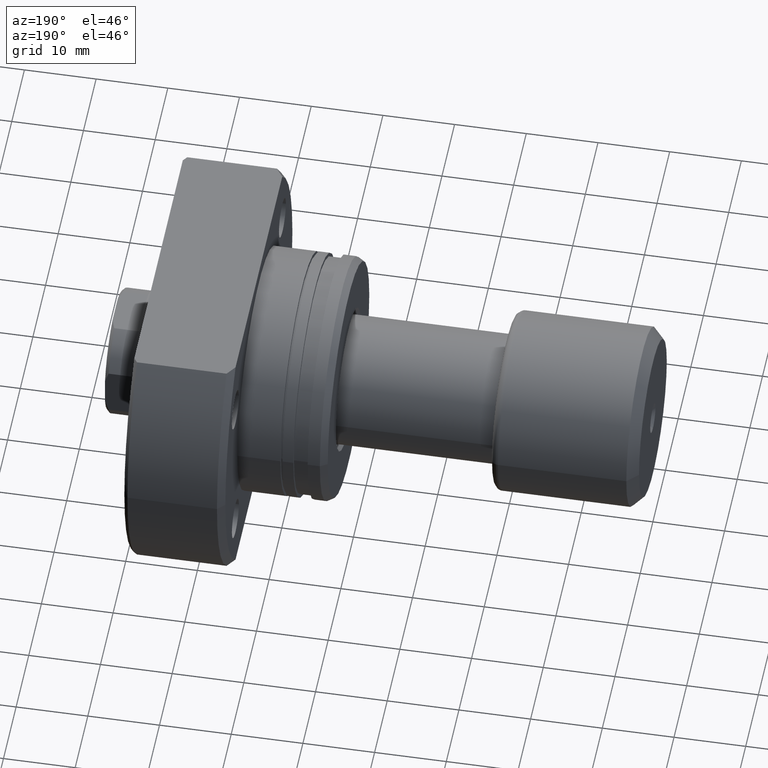
[diagram: clean part render]
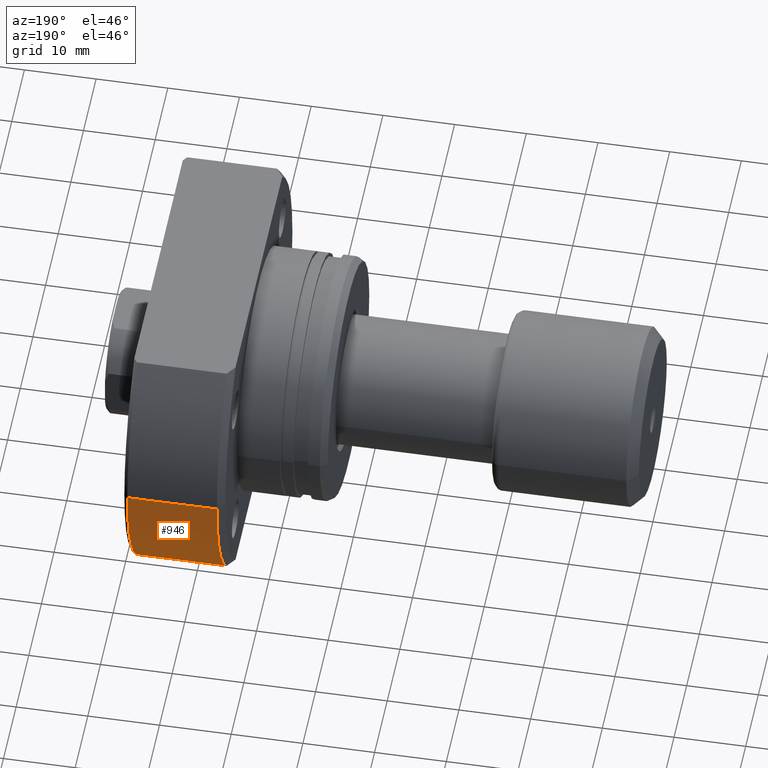
[diagram: same view with one face highlighted and labeled with its STEP entity id]
A machine part, auxiliary view. The second image highlights one B-rep face of the part: STEP entity #946.
In plain terms, the highlighted cylindrical surface (partial cylindrical patch) has radius 27.5 mm, axis along (1, 0, 0).
Its self-contained STEP definition (entity closure, byte-faithful):
#8 = CARTESIAN_POINT ( 'NONE',  ( -2.151057110211240797E-13, 19.88089535207168268, -18.99999999999999645 ) ) ;
#63 = CARTESIAN_POINT ( 'NONE',  ( 13.49999999999999112, 27.49999999999991473, 0.000000000000000000 ) ) ;
#76 = CIRCLE ( 'NONE', #750, 27.49999999999991473 ) ;
#83 = VERTEX_POINT ( 'NONE', #1871 ) ;
#144 = EDGE_CURVE ( 'NONE', #2897, #1978, #1308, .T. ) ;
#204 = EDGE_LOOP ( 'NONE', ( #678, #2541, #2117, #2608 ) ) ;
#229 = CARTESIAN_POINT ( 'NONE',  ( 26.00000000000008882, 27.49999999999991473, 0.000000000000000000 ) ) ;
#509 = CARTESIAN_POINT ( 'NONE',  ( 13.49999999999998757, 19.88089535207129543, -18.99999999999999645 ) ) ;
#678 = ORIENTED_EDGE ( 'NONE', *, *, #1513, .T. ) ;
#750 = AXIS2_PLACEMENT_3D ( 'NONE', #1280, #2789, #2250 ) ;
#788 = EDGE_CURVE ( 'NONE', #83, #1978, #2158, .T. ) ;
#946 = ADVANCED_FACE ( 'NONE', ( #3120 ), #2620, .T. ) ;
#1060 = AXIS2_PLACEMENT_3D ( 'NONE', #2059, #1812, #3045 ) ;
#1156 = DIRECTION ( 'NONE',  ( 1.000000000000000000, 9.242617352055502386E-18, -0.000000000000000000 ) ) ;
#1268 = AXIS2_PLACEMENT_3D ( 'NONE', #2691, #1156, #1708 ) ;
#1280 = CARTESIAN_POINT ( 'NONE',  ( 13.49999999999999112, 1.247753342527491952E-16, 0.000000000000000000 ) ) ;
#1308 = LINE ( 'NONE', #2556, #3193 ) ;
#1513 = EDGE_CURVE ( 'NONE', #2476, #2897, #76, .T. ) ;
#1708 = DIRECTION ( 'NONE',  ( 0.000000000000000000, 1.000000000000000000, 0.000000000000000000 ) ) ;
#1812 = DIRECTION ( 'NONE',  ( 1.000000000000000000, 9.242617352055502386E-18, -0.000000000000000000 ) ) ;
#1871 = CARTESIAN_POINT ( 'NONE',  ( 26.00000000000007461, 19.88089535207093306, -18.99999999999999645 ) ) ;
#1938 = DIRECTION ( 'NONE',  ( 1.000000000000000000, -2.886466111666351885E-14, -0.000000000000000000 ) ) ;
#1974 = EDGE_CURVE ( 'NONE', #2476, #83, #2472, .T. ) ;
#1978 = VERTEX_POINT ( 'NONE', #229 ) ;
#2049 = DIRECTION ( 'NONE',  ( 1.000000000000000000, 9.242617352055502386E-18, -0.000000000000000000 ) ) ;
#2059 = CARTESIAN_POINT ( 'NONE',  ( 26.50000000000000711, 2.449293598294708880E-16, 0.000000000000000000 ) ) ;
#2072 = VECTOR ( 'NONE', #1938, 1000.000000000000000 ) ;
#2117 = ORIENTED_EDGE ( 'NONE', *, *, #788, .F. ) ;
#2158 = CIRCLE ( 'NONE', #1268, 27.49999999999991473 ) ;
#2250 = DIRECTION ( 'NONE',  ( 0.000000000000000000, 1.000000000000000000, 0.000000000000000000 ) ) ;
#2472 = LINE ( 'NONE', #8, #2072 ) ;
#2476 = VERTEX_POINT ( 'NONE', #509 ) ;
#2541 = ORIENTED_EDGE ( 'NONE', *, *, #144, .T. ) ;
#2556 = CARTESIAN_POINT ( 'NONE',  ( 26.50000000000000711, 27.49999999999991473, 0.000000000000000000 ) ) ;
#2608 = ORIENTED_EDGE ( 'NONE', *, *, #1974, .F. ) ;
#2620 = CYLINDRICAL_SURFACE ( 'NONE', #1060, 27.49999999999991473 ) ;
#2691 = CARTESIAN_POINT ( 'NONE',  ( 26.00000000000008882, 2.403080511534438786E-16, 0.000000000000000000 ) ) ;
#2789 = DIRECTION ( 'NONE',  ( 1.000000000000000000, 9.242617352055502386E-18, -0.000000000000000000 ) ) ;
#2897 = VERTEX_POINT ( 'NONE', #63 ) ;
#3045 = DIRECTION ( 'NONE',  ( 0.000000000000000000, 1.000000000000000000, 0.000000000000000000 ) ) ;
#3120 = FACE_OUTER_BOUND ( 'NONE', #204, .T. ) ;
#3193 = VECTOR ( 'NONE', #2049, 1000.000000000000000 ) ;